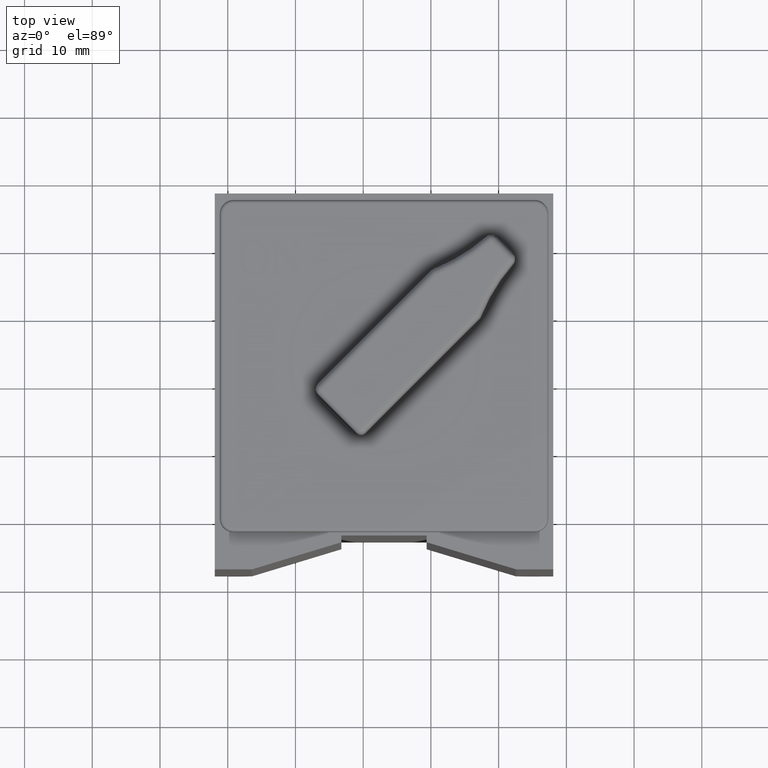
[diagram: clean part render]
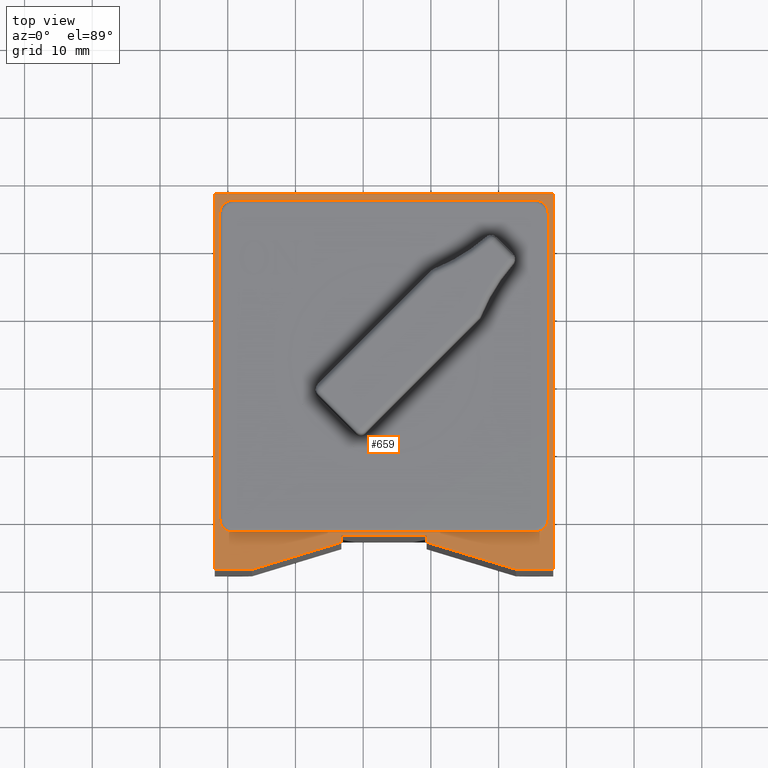
[diagram: same view with one face highlighted and labeled with its STEP entity id]
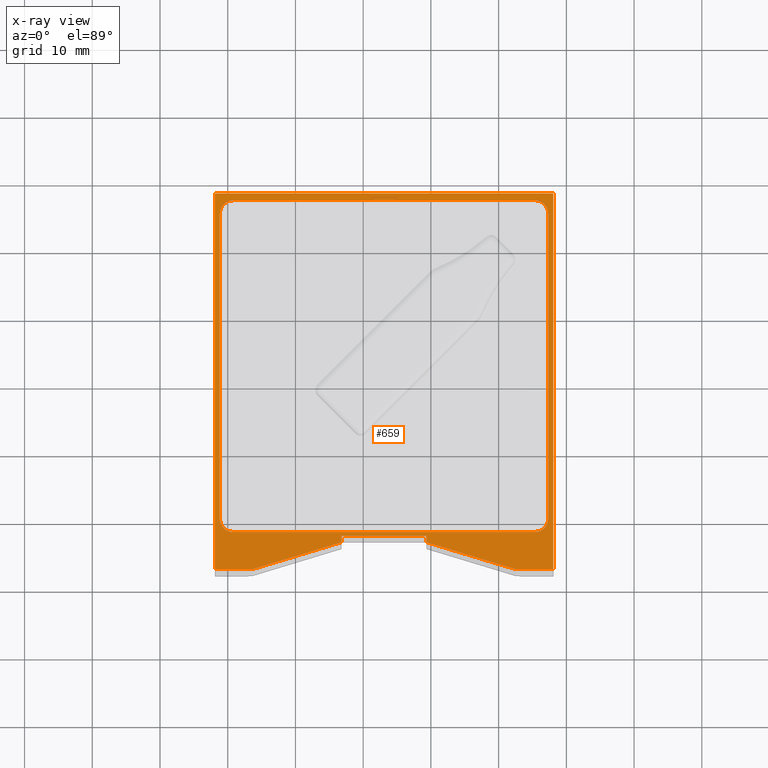
[diagram: x-ray of the same camera — body ghosted, the highlighted face saturated]
A machine part, top view. The second image highlights one B-rep face of the part: STEP entity #659.
The next image is the same camera in x-ray: the body ghosted, the highlighted face saturated — about 0% of this face is hidden behind the body in this view.
In plain terms, the highlighted planar face has unit normal (-0, 0, 1).
Its self-contained STEP definition (entity closure, byte-faithful):
#22 = ORIENTED_EDGE ( 'NONE', *, *, #2255, .F. ) ;
#68 = CARTESIAN_POINT ( 'NONE',  ( -31.92525369344761200, -27.71065196765026400, 108.2999999999761900 ) ) ;
#103 = DIRECTION ( 'NONE',  ( 1.000000000000000000, 0.0000000000000000000, 0.0000000000000000000 ) ) ;
#129 = VECTOR ( 'NONE', #2686, 1000.000000000000000 ) ;
#173 = CARTESIAN_POINT ( 'NONE',  ( 12.57474630655249800, -27.71065196765026400, 108.2999999999761900 ) ) ;
#246 = LINE ( 'NONE', #1859, #5033 ) ;
#310 = EDGE_CURVE ( 'NONE', #4396, #3514, #1123, .T. ) ;
#330 = ORIENTED_EDGE ( 'NONE', *, *, #3453, .F. ) ;
#392 = EDGE_LOOP ( 'NONE', ( #4482, #4714, #22, #330, #5720, #4551, #5535, #4055 ) ) ;
#402 = CARTESIAN_POINT ( 'NONE',  ( -31.17525369344756200, -20.21065196765025700, 108.2999999999761900 ) ) ;
#442 = PLANE ( 'NONE',  #4288 ) ;
#602 = CARTESIAN_POINT ( 'NONE',  ( 17.32474630655250200, -20.21065196765025700, 108.2999999999761900 ) ) ;
#659 = ADVANCED_FACE ( 'NONE', ( #2890, #1672 ), #442, .T. ) ;
#665 = AXIS2_PLACEMENT_3D ( 'NONE', #2914, #3403, #4724 ) ;
#678 = CARTESIAN_POINT ( 'NONE',  ( -26.42525369344762300, -27.71065196765026400, 108.2999999999761900 ) ) ;
#696 = ORIENTED_EDGE ( 'NONE', *, *, #3992, .T. ) ;
#703 = DIRECTION ( 'NONE',  ( -1.000000000000000000, 0.0000000000000000000, 0.0000000000000000000 ) ) ;
#800 = LINE ( 'NONE', #2357, #4081 ) ;
#912 = DIRECTION ( 'NONE',  ( 1.000000000000000000, 0.0000000000000000000, 0.0000000000000000000 ) ) ;
#938 = DIRECTION ( 'NONE',  ( 1.000000000000000000, 0.0000000000000000000, 0.0000000000000000000 ) ) ;
#957 = ORIENTED_EDGE ( 'NONE', *, *, #2623, .T. ) ;
#977 = CARTESIAN_POINT ( 'NONE',  ( -31.92525369344761200, -27.71065196765026400, 108.2999999999761900 ) ) ;
#982 = EDGE_CURVE ( 'NONE', #2664, #3745, #4805, .T. ) ;
#998 = LINE ( 'NONE', #678, #3694 ) ;
#1123 = LINE ( 'NONE', #1601, #4233 ) ;
#1147 = EDGE_CURVE ( 'NONE', #1328, #4464, #800, .T. ) ;
#1205 = CARTESIAN_POINT ( 'NONE',  ( 15.32474630655250000, 26.78934803234974300, 108.2999999999761900 ) ) ;
#1220 = ORIENTED_EDGE ( 'NONE', *, *, #3922, .T. ) ;
#1236 = CIRCLE ( 'NONE', #4837, 2.000000000000001800 ) ;
#1289 = ORIENTED_EDGE ( 'NONE', *, *, #2975, .T. ) ;
#1328 = VERTEX_POINT ( 'NONE', #1979 ) ;
#1477 = VERTEX_POINT ( 'NONE', #3335 ) ;
#1601 = CARTESIAN_POINT ( 'NONE',  ( -13.22525369344755900, -23.71065196765026800, 108.2999999999761900 ) ) ;
#1634 = CARTESIAN_POINT ( 'NONE',  ( -26.42525369344762300, -27.71065196765026400, 108.2999999999761900 ) ) ;
#1652 = VERTEX_POINT ( 'NONE', #173 ) ;
#1672 = FACE_BOUND ( 'NONE', #392, .T. ) ;
#1702 = DIRECTION ( 'NONE',  ( 0.0000000000000000000, 0.0000000000000000000, 1.000000000000000000 ) ) ;
#1762 = CARTESIAN_POINT ( 'NONE',  ( -29.17525369344756200, 26.78934803234974300, 108.2999999999761900 ) ) ;
#1835 = ORIENTED_EDGE ( 'NONE', *, *, #4817, .T. ) ;
#1838 = CARTESIAN_POINT ( 'NONE',  ( -29.17525369344756200, 24.78934803234973200, 108.2999999999761900 ) ) ;
#1859 = CARTESIAN_POINT ( 'NONE',  ( -13.22525369344755900, -22.71065196765026800, 108.2999999999761900 ) ) ;
#1879 = CIRCLE ( 'NONE', #665, 2.000000000000000000 ) ;
#1931 = EDGE_CURVE ( 'NONE', #5038, #3313, #1879, .T. ) ;
#1978 = EDGE_CURVE ( 'NONE', #3099, #4411, #1236, .T. ) ;
#1979 = CARTESIAN_POINT ( 'NONE',  ( 18.07474630655243800, 27.78934803234974300, 108.2999999999761900 ) ) ;
#1980 = CARTESIAN_POINT ( 'NONE',  ( 17.32474630655250200, -20.21065196765025700, 108.2999999999761900 ) ) ;
#1989 = VECTOR ( 'NONE', #4738, 1000.000000000000000 ) ;
#1991 = ORIENTED_EDGE ( 'NONE', *, *, #5011, .T. ) ;
#2008 = EDGE_CURVE ( 'NONE', #3313, #5512, #2748, .T. ) ;
#2133 = CARTESIAN_POINT ( 'NONE',  ( -29.17525369344756200, -22.21065196765026100, 108.2999999999761900 ) ) ;
#2141 = EDGE_LOOP ( 'NONE', ( #696, #1289, #5417, #5850, #1991, #1835, #957, #3595, #5323, #1220 ) ) ;
#2255 = EDGE_CURVE ( 'NONE', #5541, #3099, #5581, .T. ) ;
#2357 = CARTESIAN_POINT ( 'NONE',  ( -31.92525369344761900, 27.78934803234973600, 108.2999999999761900 ) ) ;
#2430 = CIRCLE ( 'NONE', #5221, 2.000000000000008900 ) ;
#2432 = VECTOR ( 'NONE', #3841, 1000.000000000000000 ) ;
#2572 = DIRECTION ( 'NONE',  ( 0.9570244044334739200, 0.2900073952828693400, 0.0000000000000000000 ) ) ;
#2608 = AXIS2_PLACEMENT_3D ( 'NONE', #4419, #4101, #2651 ) ;
#2623 = EDGE_CURVE ( 'NONE', #5932, #4396, #998, .T. ) ;
#2651 = DIRECTION ( 'NONE',  ( 1.000000000000000000, 0.0000000000000000000, 0.0000000000000000000 ) ) ;
#2664 = VERTEX_POINT ( 'NONE', #3984 ) ;
#2686 = DIRECTION ( 'NONE',  ( 7.709882115452478200E-017, -1.000000000000000000, -0.0000000000000000000 ) ) ;
#2689 = CARTESIAN_POINT ( 'NONE',  ( 17.32474630655250200, 24.78934803234973900, 108.2999999999761900 ) ) ;
#2692 = EDGE_CURVE ( 'NONE', #4411, #2664, #2974, .T. ) ;
#2741 = CARTESIAN_POINT ( 'NONE',  ( -13.22525369344755900, -22.71065196765026800, 108.2999999999761900 ) ) ;
#2748 = LINE ( 'NONE', #3693, #3498 ) ;
#2758 = DIRECTION ( 'NONE',  ( 0.0000000000000000000, -1.000000000000000000, 0.0000000000000000000 ) ) ;
#2851 = CARTESIAN_POINT ( 'NONE',  ( -0.6252536934475581000, -22.71065196765026800, 108.2999999999761900 ) ) ;
#2890 = FACE_OUTER_BOUND ( 'NONE', #2141, .T. ) ;
#2898 = CARTESIAN_POINT ( 'NONE',  ( -31.17525369344756200, -20.21065196765025700, 108.2999999999761900 ) ) ;
#2914 = CARTESIAN_POINT ( 'NONE',  ( 15.32474630655250000, 24.78934803234973900, 108.2999999999761900 ) ) ;
#2938 = VECTOR ( 'NONE', #3695, 1000.000000000000000 ) ;
#2974 = LINE ( 'NONE', #2133, #4141 ) ;
#2975 = EDGE_CURVE ( 'NONE', #1652, #4189, #5545, .T. ) ;
#3099 = VERTEX_POINT ( 'NONE', #2898 ) ;
#3211 = CARTESIAN_POINT ( 'NONE',  ( 12.57474630655249800, -27.71065196765026400, 108.2999999999761900 ) ) ;
#3228 = LINE ( 'NONE', #68, #1989 ) ;
#3302 = DIRECTION ( 'NONE',  ( -1.000000000000000000, -1.387778780781444200E-016, -0.0000000000000000000 ) ) ;
#3313 = VERTEX_POINT ( 'NONE', #1205 ) ;
#3335 = CARTESIAN_POINT ( 'NONE',  ( -0.6252536934475581000, -23.71065196765026800, 108.2999999999761900 ) ) ;
#3403 = DIRECTION ( 'NONE',  ( 0.0000000000000000000, 0.0000000000000000000, 1.000000000000000000 ) ) ;
#3453 = EDGE_CURVE ( 'NONE', #5512, #5541, #2430, .T. ) ;
#3459 = VECTOR ( 'NONE', #5712, 1000.000000000000200 ) ;
#3461 = LINE ( 'NONE', #1980, #4035 ) ;
#3496 = DIRECTION ( 'NONE',  ( 1.000000000000000000, 0.0000000000000000000, 0.0000000000000000000 ) ) ;
#3498 = VECTOR ( 'NONE', #703, 1000.000000000000000 ) ;
#3514 = VERTEX_POINT ( 'NONE', #2741 ) ;
#3595 = ORIENTED_EDGE ( 'NONE', *, *, #310, .T. ) ;
#3624 = CARTESIAN_POINT ( 'NONE',  ( -29.17525369344756200, -22.21065196765026100, 108.2999999999761900 ) ) ;
#3659 = LINE ( 'NONE', #5106, #5984 ) ;
#3693 = CARTESIAN_POINT ( 'NONE',  ( 15.32474630655250000, 26.78934803234974300, 108.2999999999761900 ) ) ;
#3694 = VECTOR ( 'NONE', #2572, 1000.000000000000100 ) ;
#3695 = DIRECTION ( 'NONE',  ( 1.000000000000000000, 1.261617073437691100E-015, 0.0000000000000000000 ) ) ;
#3715 = CARTESIAN_POINT ( 'NONE',  ( -13.22525369344755900, -19.89247014946846900, 108.2999999999761900 ) ) ;
#3745 = VERTEX_POINT ( 'NONE', #602 ) ;
#3841 = DIRECTION ( 'NONE',  ( -6.251255769285791600E-017, 1.000000000000000000, -0.0000000000000000000 ) ) ;
#3871 = DIRECTION ( 'NONE',  ( 0.0000000000000000000, 1.000000000000000000, 0.0000000000000000000 ) ) ;
#3922 = EDGE_CURVE ( 'NONE', #3982, #1477, #3659, .T. ) ;
#3968 = CARTESIAN_POINT ( 'NONE',  ( -31.92525369344761900, 27.78934803234973600, 108.2999999999761900 ) ) ;
#3982 = VERTEX_POINT ( 'NONE', #2851 ) ;
#3984 = CARTESIAN_POINT ( 'NONE',  ( 15.32474630655250000, -22.21065196765026100, 108.2999999999761900 ) ) ;
#3992 = EDGE_CURVE ( 'NONE', #1477, #1652, #5347, .T. ) ;
#4007 = CARTESIAN_POINT ( 'NONE',  ( -13.22525369344755900, -23.71065196765026800, 108.2999999999761900 ) ) ;
#4035 = VECTOR ( 'NONE', #3871, 1000.000000000000000 ) ;
#4055 = ORIENTED_EDGE ( 'NONE', *, *, #982, .F. ) ;
#4056 = DIRECTION ( 'NONE',  ( -1.000000000000000000, 0.0000000000000000000, 0.0000000000000000000 ) ) ;
#4081 = VECTOR ( 'NONE', #3302, 1000.000000000000000 ) ;
#4083 = EDGE_CURVE ( 'NONE', #4189, #1328, #4611, .T. ) ;
#4101 = DIRECTION ( 'NONE',  ( 0.0000000000000000000, 0.0000000000000000000, 1.000000000000000000 ) ) ;
#4141 = VECTOR ( 'NONE', #3496, 1000.000000000000000 ) ;
#4162 = CARTESIAN_POINT ( 'NONE',  ( -29.17525369344756200, -20.21065196765025700, 108.2999999999761900 ) ) ;
#4172 = VERTEX_POINT ( 'NONE', #977 ) ;
#4189 = VERTEX_POINT ( 'NONE', #5681 ) ;
#4233 = VECTOR ( 'NONE', #5219, 1000.000000000000000 ) ;
#4288 = AXIS2_PLACEMENT_3D ( 'NONE', #3715, #5578, #938 ) ;
#4396 = VERTEX_POINT ( 'NONE', #4007 ) ;
#4411 = VERTEX_POINT ( 'NONE', #3624 ) ;
#4419 = CARTESIAN_POINT ( 'NONE',  ( 15.32474630655250000, -20.21065196765025700, 108.2999999999761900 ) ) ;
#4464 = VERTEX_POINT ( 'NONE', #5411 ) ;
#4482 = ORIENTED_EDGE ( 'NONE', *, *, #2692, .F. ) ;
#4551 = ORIENTED_EDGE ( 'NONE', *, *, #1931, .F. ) ;
#4611 = LINE ( 'NONE', #5671, #2432 ) ;
#4714 = ORIENTED_EDGE ( 'NONE', *, *, #1978, .F. ) ;
#4724 = DIRECTION ( 'NONE',  ( 1.000000000000000000, 0.0000000000000000000, 0.0000000000000000000 ) ) ;
#4726 = EDGE_CURVE ( 'NONE', #3514, #3982, #246, .T. ) ;
#4738 = DIRECTION ( 'NONE',  ( 1.000000000000000000, 0.0000000000000000000, 0.0000000000000000000 ) ) ;
#4742 = DIRECTION ( 'NONE',  ( 0.0000000000000000000, 0.0000000000000000000, 1.000000000000000000 ) ) ;
#4805 = CIRCLE ( 'NONE', #2608, 2.000000000000000000 ) ;
#4817 = EDGE_CURVE ( 'NONE', #4172, #5932, #3228, .T. ) ;
#4837 = AXIS2_PLACEMENT_3D ( 'NONE', #4162, #4742, #103 ) ;
#4854 = EDGE_CURVE ( 'NONE', #3745, #5038, #3461, .T. ) ;
#4861 = DIRECTION ( 'NONE',  ( 1.875376730785737500E-016, -1.000000000000000000, 0.0000000000000000000 ) ) ;
#5011 = EDGE_CURVE ( 'NONE', #4464, #4172, #5616, .T. ) ;
#5033 = VECTOR ( 'NONE', #912, 1000.000000000000000 ) ;
#5038 = VERTEX_POINT ( 'NONE', #2689 ) ;
#5083 = CARTESIAN_POINT ( 'NONE',  ( -0.6252536934475581000, -23.71065196765026800, 108.2999999999761900 ) ) ;
#5098 = VECTOR ( 'NONE', #4861, 1000.000000000000000 ) ;
#5106 = CARTESIAN_POINT ( 'NONE',  ( -0.6252536934475581000, -22.71065196765026800, 108.2999999999761900 ) ) ;
#5219 = DIRECTION ( 'NONE',  ( 0.0000000000000000000, 1.000000000000000000, 0.0000000000000000000 ) ) ;
#5221 = AXIS2_PLACEMENT_3D ( 'NONE', #1838, #1702, #4056 ) ;
#5323 = ORIENTED_EDGE ( 'NONE', *, *, #4726, .T. ) ;
#5347 = LINE ( 'NONE', #5083, #3459 ) ;
#5411 = CARTESIAN_POINT ( 'NONE',  ( -31.92525369344761900, 27.78934803234973600, 108.2999999999761900 ) ) ;
#5417 = ORIENTED_EDGE ( 'NONE', *, *, #4083, .T. ) ;
#5463 = CARTESIAN_POINT ( 'NONE',  ( -31.17525369344756200, 24.78934803234973200, 108.2999999999761900 ) ) ;
#5512 = VERTEX_POINT ( 'NONE', #1762 ) ;
#5535 = ORIENTED_EDGE ( 'NONE', *, *, #4854, .F. ) ;
#5541 = VERTEX_POINT ( 'NONE', #5463 ) ;
#5545 = LINE ( 'NONE', #3211, #2938 ) ;
#5578 = DIRECTION ( 'NONE',  ( -0.0000000000000000000, 0.0000000000000000000, 1.000000000000000000 ) ) ;
#5581 = LINE ( 'NONE', #402, #129 ) ;
#5616 = LINE ( 'NONE', #3968, #5098 ) ;
#5671 = CARTESIAN_POINT ( 'NONE',  ( 18.07474630655243800, 27.78934803234974300, 108.2999999999761900 ) ) ;
#5681 = CARTESIAN_POINT ( 'NONE',  ( 18.07474630655243800, -27.71065196765025700, 108.2999999999761900 ) ) ;
#5712 = DIRECTION ( 'NONE',  ( 0.9570244044334739200, -0.2900073952828694000, 0.0000000000000000000 ) ) ;
#5720 = ORIENTED_EDGE ( 'NONE', *, *, #2008, .F. ) ;
#5850 = ORIENTED_EDGE ( 'NONE', *, *, #1147, .T. ) ;
#5932 = VERTEX_POINT ( 'NONE', #1634 ) ;
#5984 = VECTOR ( 'NONE', #2758, 1000.000000000000000 ) ;